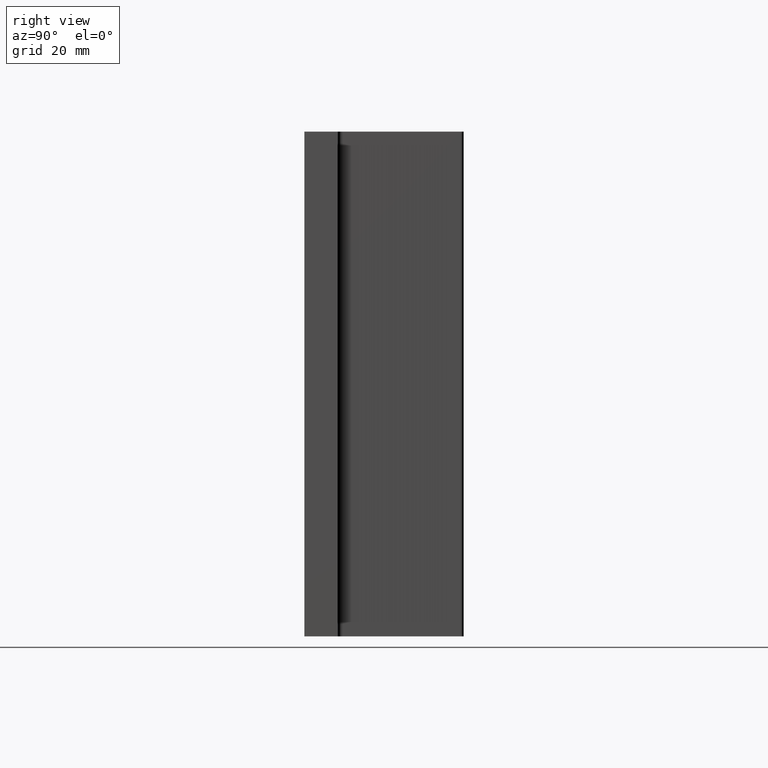
[diagram: clean part render]
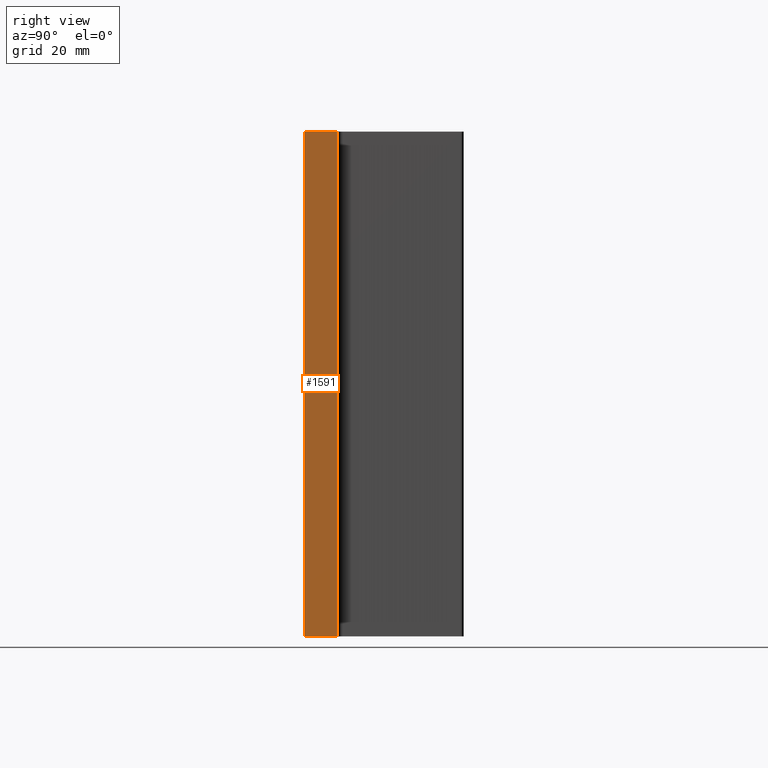
[diagram: same view with one face highlighted and labeled with its STEP entity id]
A machine part, right view. The second image highlights one B-rep face of the part: STEP entity #1591.
In plain terms, the highlighted planar face has unit normal (-1, 0, 0).
Its self-contained STEP definition (entity closure, byte-faithful):
#123 = DIRECTION ( 'NONE',  ( -0.0000000000000000000, -0.0000000000000000000, -1.000000000000000000 ) ) ;
#129 = CARTESIAN_POINT ( 'NONE',  ( 99.99075285964768511, -3.561464751583587329E-08, 50.00000000000000000 ) ) ;
#377 = LINE ( 'NONE', #129, #787 ) ;
#393 = AXIS2_PLACEMENT_3D ( 'NONE', #1510, #1502, #1488 ) ;
#434 = VERTEX_POINT ( 'NONE', #1885 ) ;
#588 = VECTOR ( 'NONE', #633, 1000.000000000000000 ) ;
#604 = CARTESIAN_POINT ( 'NONE',  ( 99.99075285964768511, -3.561464751583587329E-08, 50.00000000000000000 ) ) ;
#633 = DIRECTION ( 'NONE',  ( 0.0000000000000000000, 1.000000000000000000, 0.0000000000000000000 ) ) ;
#787 = VECTOR ( 'NONE', #123, 1000.000000000000000 ) ;
#803 = VERTEX_POINT ( 'NONE', #2243 ) ;
#838 = CARTESIAN_POINT ( 'NONE',  ( 99.99075285964768511, -3.561464751583587329E-08, -50.00000000000000000 ) ) ;
#911 = VERTEX_POINT ( 'NONE', #1569 ) ;
#960 = DIRECTION ( 'NONE',  ( 0.0000000000000000000, 1.000000000000000000, 0.0000000000000000000 ) ) ;
#987 = CARTESIAN_POINT ( 'NONE',  ( 99.99075285964768511, -3.561464751583587329E-08, -50.00000000000000000 ) ) ;
#1002 = LINE ( 'NONE', #604, #588 ) ;
#1155 = CARTESIAN_POINT ( 'NONE',  ( 99.99075285964768511, 6.593843247962997367, 50.00000000000000000 ) ) ;
#1266 = DIRECTION ( 'NONE',  ( -0.0000000000000000000, -0.0000000000000000000, -1.000000000000000000 ) ) ;
#1285 = EDGE_CURVE ( 'NONE', #803, #1669, #377, .T. ) ;
#1373 = VECTOR ( 'NONE', #1266, 1000.000000000000000 ) ;
#1378 = EDGE_LOOP ( 'NONE', ( #2233, #2145, #2011, #1954 ) ) ;
#1432 = LINE ( 'NONE', #1155, #1373 ) ;
#1488 = DIRECTION ( 'NONE',  ( 0.0000000000000000000, 0.0000000000000000000, 1.000000000000000000 ) ) ;
#1502 = DIRECTION ( 'NONE',  ( -1.000000000000000000, 0.0000000000000000000, 0.0000000000000000000 ) ) ;
#1510 = CARTESIAN_POINT ( 'NONE',  ( 99.99075285964768511, -3.561464751583587329E-08, 50.00000000000000000 ) ) ;
#1537 = VECTOR ( 'NONE', #960, 1000.000000000000000 ) ;
#1548 = PLANE ( 'NONE',  #393 ) ;
#1569 = CARTESIAN_POINT ( 'NONE',  ( 99.99075285964768511, 6.593843247962997367, -50.00000000000000000 ) ) ;
#1591 = ADVANCED_FACE ( 'NONE', ( #2169 ), #1548, .F. ) ;
#1669 = VERTEX_POINT ( 'NONE', #987 ) ;
#1752 = LINE ( 'NONE', #838, #1537 ) ;
#1756 = EDGE_CURVE ( 'NONE', #803, #434, #1002, .T. ) ;
#1885 = CARTESIAN_POINT ( 'NONE',  ( 99.99075285964768511, 6.593843247962997367, 50.00000000000000000 ) ) ;
#1954 = ORIENTED_EDGE ( 'NONE', *, *, #1285, .T. ) ;
#1961 = EDGE_CURVE ( 'NONE', #1669, #911, #1752, .T. ) ;
#2006 = EDGE_CURVE ( 'NONE', #434, #911, #1432, .T. ) ;
#2011 = ORIENTED_EDGE ( 'NONE', *, *, #1756, .F. ) ;
#2145 = ORIENTED_EDGE ( 'NONE', *, *, #2006, .F. ) ;
#2169 = FACE_OUTER_BOUND ( 'NONE', #1378, .T. ) ;
#2233 = ORIENTED_EDGE ( 'NONE', *, *, #1961, .T. ) ;
#2243 = CARTESIAN_POINT ( 'NONE',  ( 99.99075285964768511, -3.561464751583587329E-08, 50.00000000000000000 ) ) ;